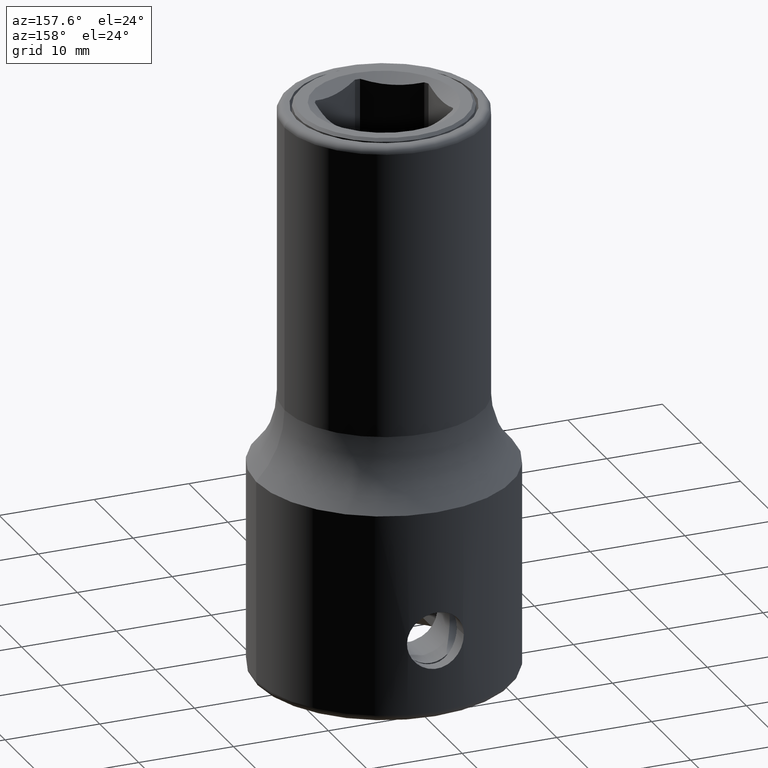
[diagram: clean part render]
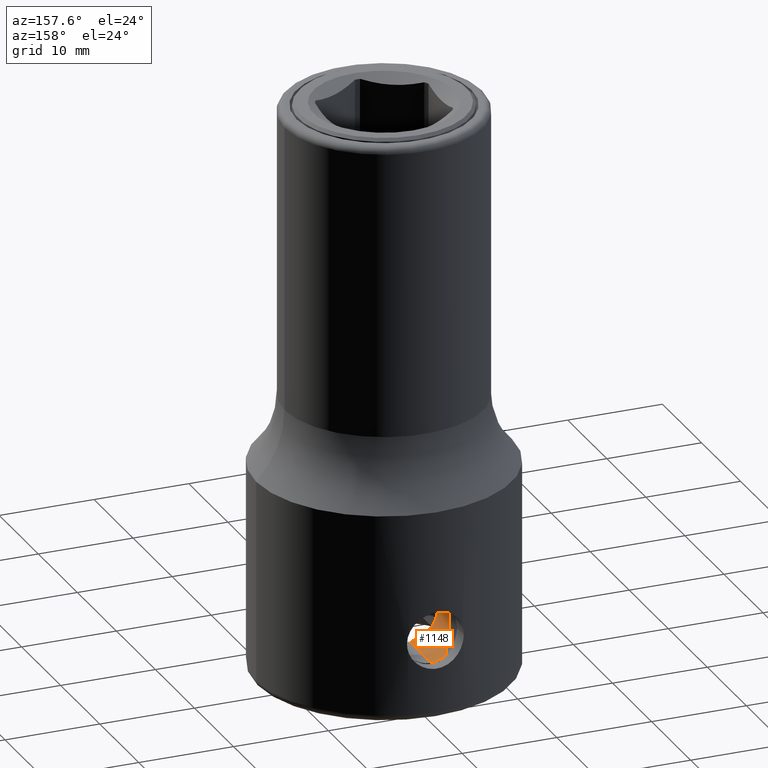
[diagram: same view with one face highlighted and labeled with its STEP entity id]
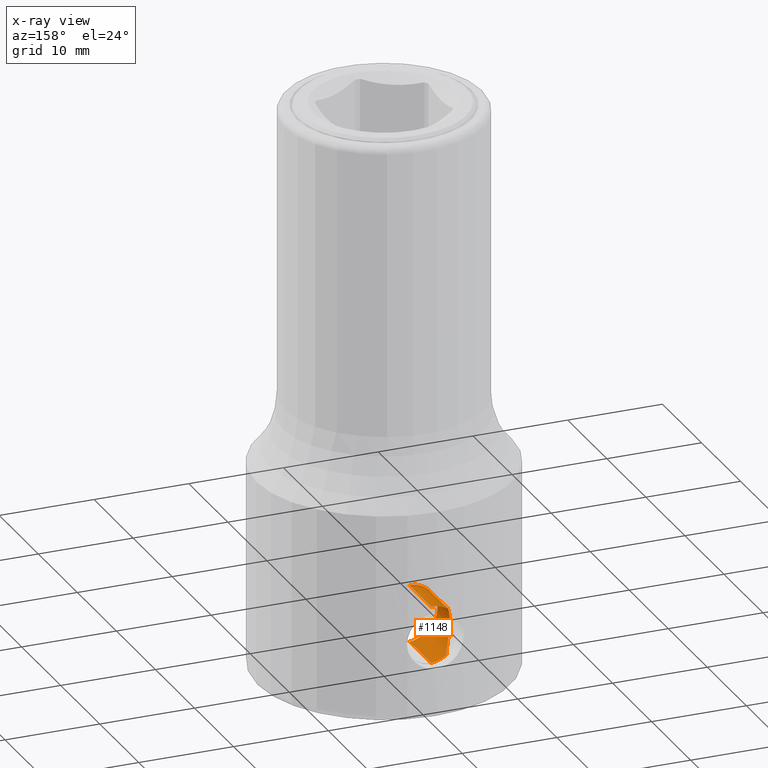
[diagram: x-ray of the same camera — body ghosted, the highlighted face saturated]
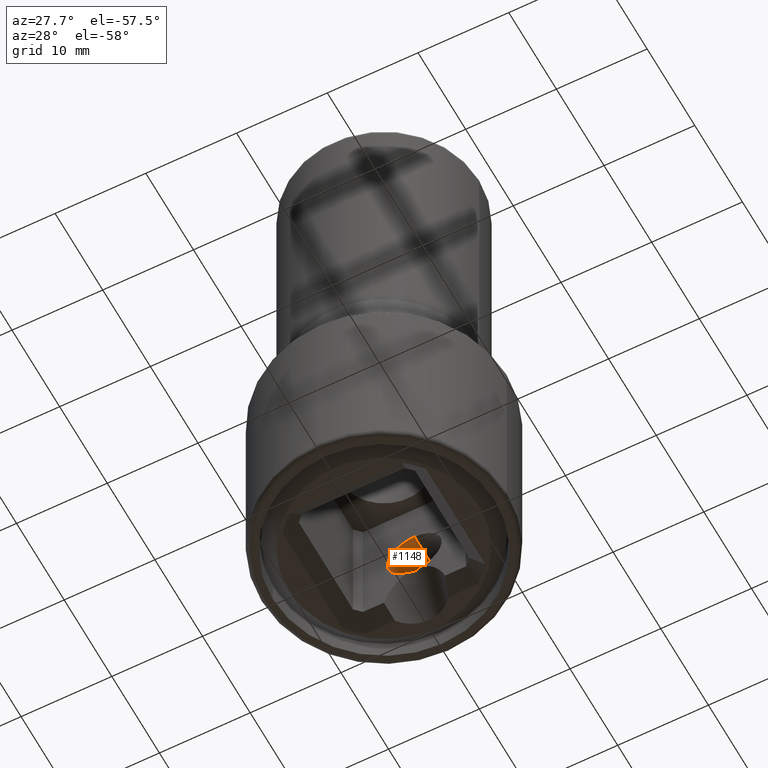
[diagram: same view with one face highlighted and labeled with its STEP entity id]
A machine part, auxiliary view. The second image highlights one B-rep face of the part: STEP entity #1148.
The next image is the same camera in x-ray: the body ghosted, the highlighted face saturated — about 3% of this face is hidden behind the body in this view.
A second angle (auxiliary view) of the same face is appended — the face is thin or edge-on in the first view.
In plain terms, the highlighted cylindrical surface (edge-blend (fillet) strip) has radius 3 mm, axis along (0, 1, 0).
Its self-contained STEP definition (entity closure, byte-faithful):
#93=CARTESIAN_POINT('',(-6.828016345722E-1,6.405E0,5.078736244735E0));
#94=CARTESIAN_POINT('',(-5.638971026092E-1,6.444831933533E0,5.050944091891E0));
#95=CARTESIAN_POINT('',(-3.294418357780E-1,6.501610744097E0,5.011517368037E0));
#96=CARTESIAN_POINT('',(-1.076398375958E-1,6.518248654052E0,5.E0));
#97=CARTESIAN_POINT('',(0.E0,6.518248654052E0,5.E0));
#129=DIRECTION('',(0.E0,1.E0,0.E0));
#130=VECTOR('',#129,5.481751345948E0);
#131=CARTESIAN_POINT('',(0.E0,6.518248654052E0,5.E0));
#132=LINE('',#131,#130);
#137=CARTESIAN_POINT('',(0.E0,1.2E1,1.1E1));
#138=CARTESIAN_POINT('',(-1.428796491218E-1,1.2E1,1.1E1));
#139=CARTESIAN_POINT('',(-4.336995549429E-1,1.199504300623E1,1.098027938764E1));
#140=CARTESIAN_POINT('',(-9.012016425969E-1,1.196917251335E1,1.087533669972E1));
#141=CARTESIAN_POINT('',(-1.349261985949E0,1.192640030593E1,1.069312140343E1));
#142=CARTESIAN_POINT('',(-1.608888196740E0,1.189230720022E1,1.053657886009E1));
#143=CARTESIAN_POINT('',(-1.732050807569E0,1.187434208704E1,1.044948974278E1));
#177=CARTESIAN_POINT('',(-1.732050807569E0,1.187434208704E1,5.550510257217E0));
#178=CARTESIAN_POINT('',(-1.606433526368E0,1.189266525069E1,5.461685425846E0));
#179=CARTESIAN_POINT('',(-1.343092654750E0,1.192702842279E1,5.304181705086E0));
#180=CARTESIAN_POINT('',(-9.067628690783E-1,1.196864861641E1,5.126884054764E0));
#181=CARTESIAN_POINT('',(-4.391089745067E-1,1.199489499955E1,5.020289157641E0));
#182=CARTESIAN_POINT('',(-1.454268436035E-1,1.2E1,5.E0));
#183=CARTESIAN_POINT('',(0.E0,1.2E1,5.E0));
#212=DIRECTION('',(0.E0,1.E0,0.E0));
#213=VECTOR('',#212,5.595E0);
#214=CARTESIAN_POINT('',(0.E0,6.405E0,1.1E1));
#215=LINE('',#214,#213);
#349=CARTESIAN_POINT('',(-1.732050807569E0,1.187434208704E1,1.044948974278E1));
#350=CARTESIAN_POINT('',(-1.754084949507E0,1.179399183888E1,1.043390925160E1));
#351=CARTESIAN_POINT('',(-1.805789995964E0,1.163714876797E1,1.039646972699E1));
#352=CARTESIAN_POINT('',(-1.900548281831E0,1.140898386649E1,1.032238979443E1));
#353=CARTESIAN_POINT('',(-2.004177295247E0,1.119328341843E1,1.023383440575E1));
#354=CARTESIAN_POINT('',(-2.111290023980E0,1.099026673850E1,1.013309202568E1));
#355=CARTESIAN_POINT('',(-2.220575195813E0,1.079575035854E1,1.001946583693E1));
#356=CARTESIAN_POINT('',(-2.337100128864E0,1.059742583688E1,9.884195686703E0));
#357=CARTESIAN_POINT('',(-2.464063753967E0,1.038840105960E1,9.716453105173E0));
#358=CARTESIAN_POINT('',(-2.602644607109E0,1.016565407916E1,9.500767050785E0));
#359=CARTESIAN_POINT('',(-2.741521576438E0,9.945740902773E0,9.232318137134E0));
#360=CARTESIAN_POINT('',(-2.867170782667E0,9.748109139994E0,8.908975011297E0));
#361=CARTESIAN_POINT('',(-2.964386717433E0,9.595393986096E0,8.520047716848E0));
#362=CARTESIAN_POINT('',(-3.007870766710E0,9.527013132121E0,8.102000237603E0));
#363=CARTESIAN_POINT('',(-2.993439475998E0,9.549715710826E0,7.692235411449E0));
#364=CARTESIAN_POINT('',(-2.924766466041E0,9.657643409692E0,7.295751484621E0));
#365=CARTESIAN_POINT('',(-2.815646381288E0,9.829078624321E0,6.945688981018E0));
#366=CARTESIAN_POINT('',(-2.684107502792E0,1.003637688608E1,6.648227528924E0));
#367=CARTESIAN_POINT('',(-2.539569513111E0,1.026645349829E1,6.395489172432E0));
#368=CARTESIAN_POINT('',(-2.400453030354E0,1.049228192056E1,6.196108461105E0));
#369=CARTESIAN_POINT('',(-2.271596500352E0,1.070777823976E1,6.037402858260E0));
#370=CARTESIAN_POINT('',(-2.150383818598E0,1.091914125863E1,5.905826891513E0));
#371=CARTESIAN_POINT('',(-2.031903602123E0,1.113862763227E1,5.790980449685E0));
#372=CARTESIAN_POINT('',(-1.917602508816E0,1.137078712465E1,5.691394762054E0));
#373=CARTESIAN_POINT('',(-1.813073755324E0,1.161651035484E1,5.608851487755E0));
#374=CARTESIAN_POINT('',(-1.756061207195E0,1.178678516860E1,5.567488173611E0));
#375=CARTESIAN_POINT('',(-1.732050807569E0,1.187434208704E1,5.550510257217E0));
#851=CARTESIAN_POINT('',(0.E0,6.405E0,8.E0));
#852=DIRECTION('',(0.E0,1.E0,0.E0));
#853=DIRECTION('',(-2.276005448574E-1,0.E0,-9.737545850884E-1));
#854=AXIS2_PLACEMENT_3D('',#851,#852,#853);
#965=VERTEX_POINT('',#137);
#966=VERTEX_POINT('',#143);
#967=VERTEX_POINT('',#177);
#968=VERTEX_POINT('',#183);
#981=CARTESIAN_POINT('',(-6.828016345722E-1,6.405E0,5.078736244735E0));
#982=CARTESIAN_POINT('',(0.E0,6.405E0,1.1E1));
#983=VERTEX_POINT('',#981);
#984=VERTEX_POINT('',#982);
#987=VERTEX_POINT('',#97);
#1128=CARTESIAN_POINT('',(0.E0,-1.440000009255E1,8.E0));
#1129=DIRECTION('',(0.E0,1.E0,0.E0));
#1130=DIRECTION('',(0.E0,0.E0,-1.E0));
#1131=AXIS2_PLACEMENT_3D('',#1128,#1129,#1130);
#1132=CYLINDRICAL_SURFACE('',#1131,3.E0);
#1134=ORIENTED_EDGE('',*,*,#1133,.T.);
#1136=ORIENTED_EDGE('',*,*,#1135,.T.);
#1138=ORIENTED_EDGE('',*,*,#1137,.T.);
#1140=ORIENTED_EDGE('',*,*,#1139,.F.);
#1141=ORIENTED_EDGE('',*,*,#1112,.F.);
#1143=ORIENTED_EDGE('',*,*,#1142,.T.);
#1145=ORIENTED_EDGE('',*,*,#1144,.T.);
#1146=EDGE_LOOP('',(#1134,#1136,#1138,#1140,#1141,#1143,#1145));
#1147=FACE_OUTER_BOUND('',#1146,.F.);
#1148=ADVANCED_FACE('',(#1147),#1132,.F.);
#98=B_SPLINE_CURVE_WITH_KNOTS('',3,(#93,#94,#95,#96,#97),.UNSPECIFIED.,.F.,.F.,(
4,1,4),(0.E0,5.E-1,1.E0),.UNSPECIFIED.);
#144=B_SPLINE_CURVE_WITH_KNOTS('',3,(#137,#138,#139,#140,#141,#142,#143),
.UNSPECIFIED.,.F.,.F.,(4,1,1,1,4),(0.E0,2.5E-1,5.E-1,7.5E-1,1.E0),
.UNSPECIFIED.);
#184=B_SPLINE_CURVE_WITH_KNOTS('',3,(#177,#178,#179,#180,#181,#182,#183),
.UNSPECIFIED.,.F.,.F.,(4,1,1,1,4),(0.E0,2.5E-1,5.E-1,7.5E-1,1.E0),
.UNSPECIFIED.);
#376=B_SPLINE_CURVE_WITH_KNOTS('',3,(#349,#350,#351,#352,#353,#354,#355,#356,
#357,#358,#359,#360,#361,#362,#363,#364,#365,#366,#367,#368,#369,#370,#371,#372,
#373,#374,#375),.UNSPECIFIED.,.F.,.F.,(4,1,1,1,1,1,1,1,1,1,1,1,1,1,1,1,1,1,1,1,
1,1,1,1,4),(0.E0,4.166666666667E-2,8.333333333333E-2,1.25E-1,1.666666666667E-1,
2.083333333333E-1,2.5E-1,2.916666666667E-1,3.333333333333E-1,3.75E-1,
4.166666666667E-1,4.583333333333E-1,5.E-1,5.416666666667E-1,5.833333333333E-1,
6.25E-1,6.666666666667E-1,7.083333333333E-1,7.5E-1,7.916666666667E-1,
8.333333333333E-1,8.75E-1,9.166666666667E-1,9.583333333333E-1,1.E0),
.UNSPECIFIED.);
#855=CIRCLE('',#854,3.E0);
#1112=EDGE_CURVE('',#983,#987,#98,.T.);
#1133=EDGE_CURVE('',#965,#966,#144,.T.);
#1135=EDGE_CURVE('',#966,#967,#376,.T.);
#1137=EDGE_CURVE('',#967,#968,#184,.T.);
#1139=EDGE_CURVE('',#987,#968,#132,.T.);
#1142=EDGE_CURVE('',#983,#984,#855,.T.);
#1144=EDGE_CURVE('',#984,#965,#215,.T.);